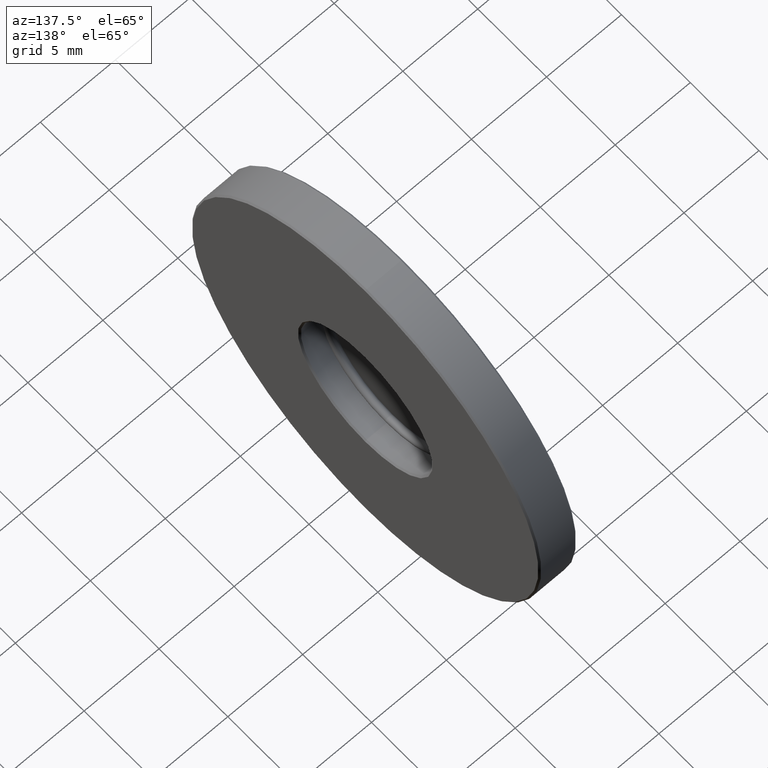
[diagram: clean part render]
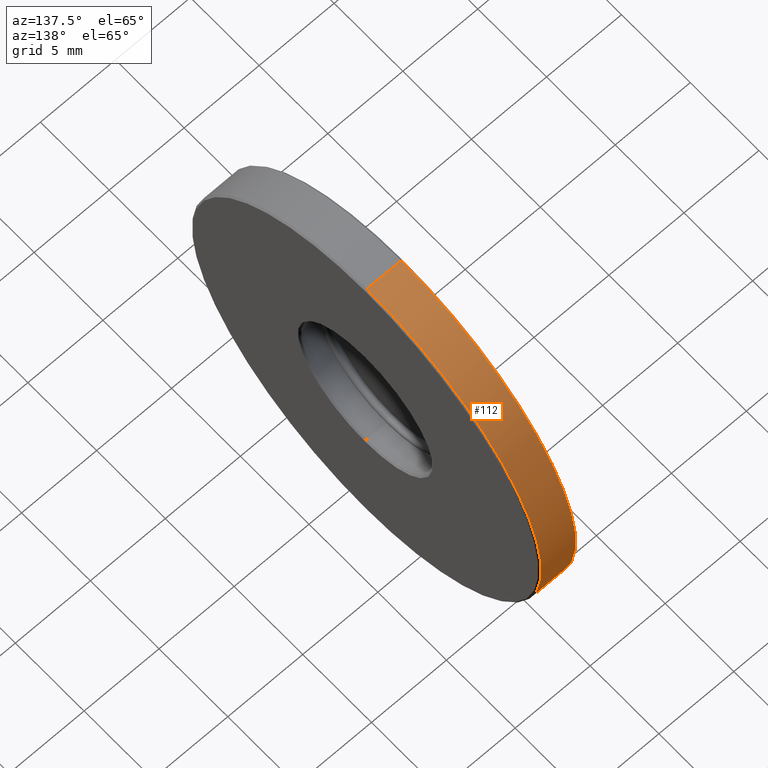
[diagram: same view with one face highlighted and labeled with its STEP entity id]
A machine part, auxiliary view. The second image highlights one B-rep face of the part: STEP entity #112.
In plain terms, the highlighted cylindrical surface (partial cylindrical patch) has radius 12.7 mm, axis along (-1, 0, 0).
Its self-contained STEP definition (entity closure, byte-faithful):
#8 = ORIENTED_EDGE ( 'NONE', *, *, #881, .F. ) ;
#15 = ORIENTED_EDGE ( 'NONE', *, *, #211, .T. ) ;
#28 = LINE ( 'NONE', #318, #379 ) ;
#50 = CARTESIAN_POINT ( 'NONE',  ( -4.834863851252999112, 1.436758841085000071, 25.39999999999999858 ) ) ;
#74 = ORIENTED_EDGE ( 'NONE', *, *, #909, .T. ) ;
#112 = ADVANCED_FACE ( 'NONE', ( #252 ), #556, .T. ) ;
#161 = VERTEX_POINT ( 'NONE', #282 ) ;
#206 = EDGE_CURVE ( 'NONE', #161, #852, #672, .T. ) ;
#211 = EDGE_CURVE ( 'NONE', #592, #305, #629, .T. ) ;
#212 = VECTOR ( 'NONE', #919, 1000.000000000000000 ) ;
#252 = FACE_OUTER_BOUND ( 'NONE', #306, .T. ) ;
#264 = CARTESIAN_POINT ( 'NONE',  ( -4.834863851252999112, 1.436758841085001626, 12.69999999999999929 ) ) ;
#282 = CARTESIAN_POINT ( 'NONE',  ( -2.534863851253000178, 1.436758841085000071, 38.09999999999999432 ) ) ;
#305 = VERTEX_POINT ( 'NONE', #357 ) ;
#306 = EDGE_LOOP ( 'NONE', ( #941, #74, #15, #8 ) ) ;
#318 = CARTESIAN_POINT ( 'NONE',  ( -2.434863851252999645, 1.436758841085000071, 38.09999999999999432 ) ) ;
#357 = CARTESIAN_POINT ( 'NONE',  ( -4.834863851252999112, 1.436758841085000071, 38.09999999999999432 ) ) ;
#379 = VECTOR ( 'NONE', #773, 1000.000000000000000 ) ;
#382 = AXIS2_PLACEMENT_3D ( 'NONE', #564, #498, #634 ) ;
#417 = CARTESIAN_POINT ( 'NONE',  ( -2.434863851252999645, 1.436758841085001626, 12.69999999999999929 ) ) ;
#427 = AXIS2_PLACEMENT_3D ( 'NONE', #835, #842, #746 ) ;
#477 = CARTESIAN_POINT ( 'NONE',  ( -2.534863851253000178, 1.436758841085001626, 12.69999999999999929 ) ) ;
#498 = DIRECTION ( 'NONE',  ( -1.000000000000000000, 0.000000000000000000, 0.000000000000000000 ) ) ;
#556 = CYLINDRICAL_SURFACE ( 'NONE', #427, 12.69999999999999574 ) ;
#564 = CARTESIAN_POINT ( 'NONE',  ( -2.534863851253000178, 1.436758841085000071, 25.39999999999999858 ) ) ;
#592 = VERTEX_POINT ( 'NONE', #264 ) ;
#629 = CIRCLE ( 'NONE', #897, 12.69999999999999929 ) ;
#634 = DIRECTION ( 'NONE',  ( 0.000000000000000000, 0.000000000000000000, -1.000000000000000000 ) ) ;
#672 = CIRCLE ( 'NONE', #382, 12.69999999999999929 ) ;
#701 = LINE ( 'NONE', #417, #212 ) ;
#746 = DIRECTION ( 'NONE',  ( 0.000000000000000000, 0.000000000000000000, 1.000000000000000000 ) ) ;
#773 = DIRECTION ( 'NONE',  ( -1.000000000000000000, 0.000000000000000000, 0.000000000000000000 ) ) ;
#785 = DIRECTION ( 'NONE',  ( 0.000000000000000000, 0.000000000000000000, -1.000000000000000000 ) ) ;
#835 = CARTESIAN_POINT ( 'NONE',  ( -2.434863851252999645, 1.436758841085000071, 25.39999999999999858 ) ) ;
#842 = DIRECTION ( 'NONE',  ( -1.000000000000000000, 0.000000000000000000, 0.000000000000000000 ) ) ;
#852 = VERTEX_POINT ( 'NONE', #477 ) ;
#881 = EDGE_CURVE ( 'NONE', #161, #305, #28, .T. ) ;
#897 = AXIS2_PLACEMENT_3D ( 'NONE', #50, #915, #785 ) ;
#909 = EDGE_CURVE ( 'NONE', #852, #592, #701, .T. ) ;
#915 = DIRECTION ( 'NONE',  ( 1.000000000000000000, 0.000000000000000000, 0.000000000000000000 ) ) ;
#919 = DIRECTION ( 'NONE',  ( -1.000000000000000000, 0.000000000000000000, 0.000000000000000000 ) ) ;
#941 = ORIENTED_EDGE ( 'NONE', *, *, #206, .T. ) ;